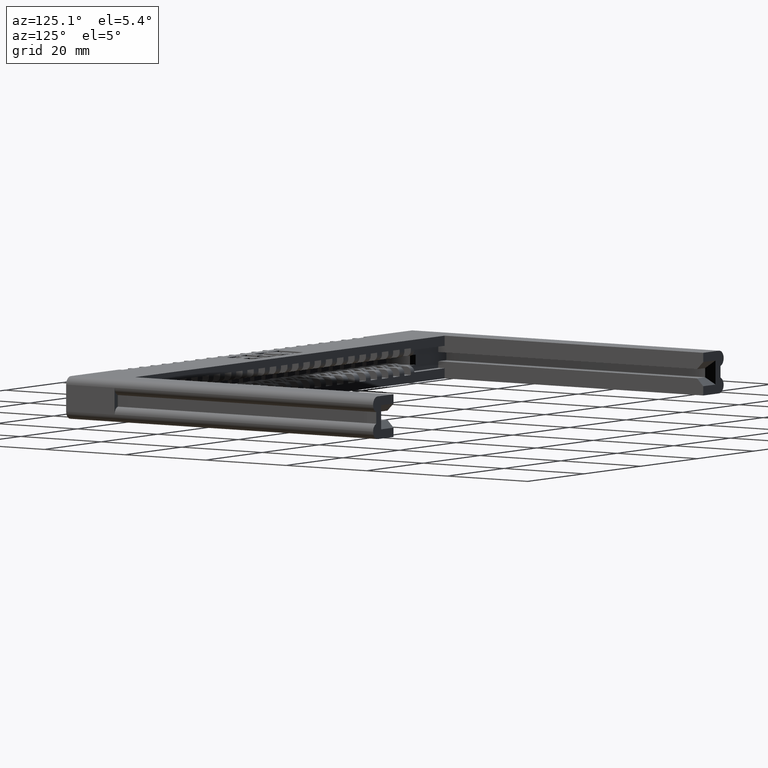
[diagram: clean part render]
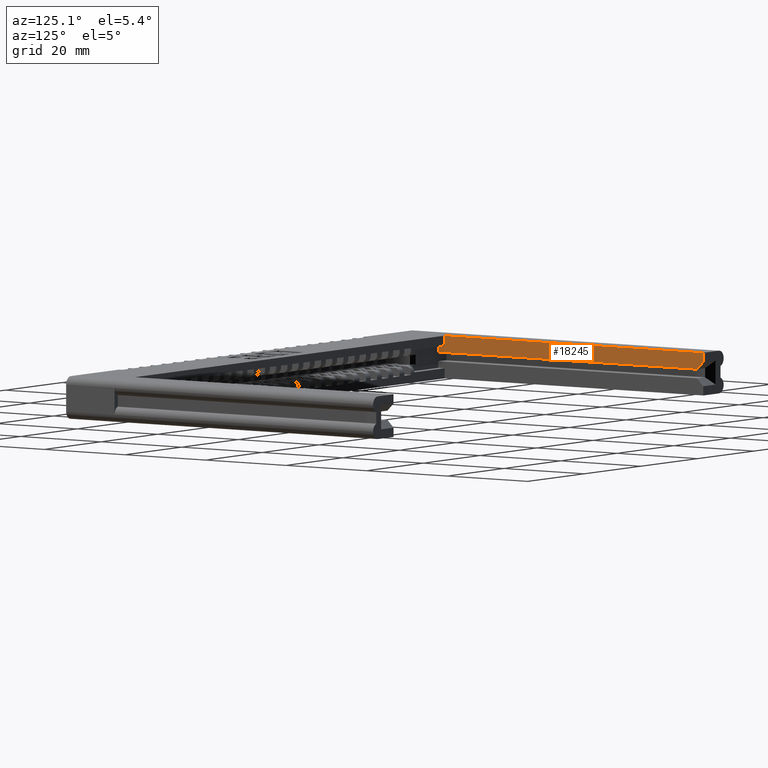
[diagram: same view with one face highlighted and labeled with its STEP entity id]
A machine part, auxiliary view. The second image highlights one B-rep face of the part: STEP entity #18245.
In plain terms, the highlighted planar face has unit normal (-1, 0, 0).
Its self-contained STEP definition (entity closure, byte-faithful):
#578 = VECTOR ( 'NONE', #17015, 39.37007874015748100 ) ;
#1001 = VERTEX_POINT ( 'NONE', #21422 ) ;
#1369 = VECTOR ( 'NONE', #1831, 39.37007874015748100 ) ;
#1831 = DIRECTION ( 'NONE',  ( 0.0000000000000000000, 1.000000000000000000, 0.0000000000000000000 ) ) ;
#1910 = CARTESIAN_POINT ( 'NONE',  ( 0.2844999999999999200, 0.4729999999999994200, 0.1715000000000000100 ) ) ;
#3632 = LINE ( 'NONE', #9833, #12829 ) ;
#5119 = DIRECTION ( 'NONE',  ( -0.0000000000000000000, -0.0000000000000000000, 1.000000000000000000 ) ) ;
#5148 = CARTESIAN_POINT ( 'NONE',  ( 0.2844999999999999200, 0.4109999999999994800, 0.08999999999999994100 ) ) ;
#6005 = EDGE_CURVE ( 'NONE', #8676, #7816, #21758, .T. ) ;
#6157 = CARTESIAN_POINT ( 'NONE',  ( 0.2844999999999999200, 0.4109999999999994800, 0.03699999999999999800 ) ) ;
#6175 = DIRECTION ( 'NONE',  ( -0.0000000000000000000, -0.0000000000000000000, -1.000000000000000000 ) ) ;
#6306 = CARTESIAN_POINT ( 'NONE',  ( 0.2844999999999999200, 0.4729999999999994200, 0.1715000000000000100 ) ) ;
#6788 = EDGE_CURVE ( 'NONE', #1001, #10217, #3632, .T. ) ;
#7352 = VECTOR ( 'NONE', #20477, 39.37007874015748100 ) ;
#7559 = ORIENTED_EDGE ( 'NONE', *, *, #9522, .F. ) ;
#7816 = VERTEX_POINT ( 'NONE', #16880 ) ;
#8062 = CARTESIAN_POINT ( 'NONE',  ( 0.2844999999999999200, 3.000000000000000400, 0.09699999999999935100 ) ) ;
#8676 = VERTEX_POINT ( 'NONE', #13043 ) ;
#9522 = EDGE_CURVE ( 'NONE', #1001, #15237, #10668, .T. ) ;
#9629 = DIRECTION ( 'NONE',  ( 0.0000000000000000000, 0.7071067811865507900, 0.7071067811865443500 ) ) ;
#9830 = EDGE_CURVE ( 'NONE', #15237, #7816, #17295, .T. ) ;
#9833 = CARTESIAN_POINT ( 'NONE',  ( 0.2844999999999999200, 2.940000000000000400, 0.03699999999999999800 ) ) ;
#10210 = PLANE ( 'NONE',  #11589 ) ;
#10217 = VERTEX_POINT ( 'NONE', #8062 ) ;
#10280 = LINE ( 'NONE', #17079, #578 ) ;
#10291 = DIRECTION ( 'NONE',  ( 0.0000000000000000000, -1.000000000000000000, 0.0000000000000000000 ) ) ;
#10655 = EDGE_LOOP ( 'NONE', ( #7559, #11179, #13755, #15482, #16913, #18243, #19823 ) ) ;
#10668 = LINE ( 'NONE', #10747, #19726 ) ;
#10747 = CARTESIAN_POINT ( 'NONE',  ( 0.2844999999999999200, 3.000000000000000400, 0.03699999999999999800 ) ) ;
#10805 = EDGE_CURVE ( 'NONE', #13376, #8676, #18570, .T. ) ;
#11044 = CARTESIAN_POINT ( 'NONE',  ( 0.2844999999999999200, 3.000000000000000400, 0.1715000000000000100 ) ) ;
#11179 = ORIENTED_EDGE ( 'NONE', *, *, #6788, .T. ) ;
#11589 = AXIS2_PLACEMENT_3D ( 'NONE', #20996, #22747, #12104 ) ;
#12030 = EDGE_CURVE ( 'NONE', #13376, #18953, #16035, .T. ) ;
#12104 = DIRECTION ( 'NONE',  ( 0.0000000000000000000, 0.0000000000000000000, 1.000000000000000000 ) ) ;
#12663 = FACE_OUTER_BOUND ( 'NONE', #10655, .T. ) ;
#12829 = VECTOR ( 'NONE', #9629, 39.37007874015748100 ) ;
#13043 = CARTESIAN_POINT ( 'NONE',  ( 0.2844999999999999200, 0.4729999999999995900, 0.08999999999999994100 ) ) ;
#13376 = VERTEX_POINT ( 'NONE', #15471 ) ;
#13755 = ORIENTED_EDGE ( 'NONE', *, *, #22661, .F. ) ;
#14415 = VECTOR ( 'NONE', #6175, 39.37007874015748100 ) ;
#15237 = VERTEX_POINT ( 'NONE', #6157 ) ;
#15471 = CARTESIAN_POINT ( 'NONE',  ( 0.2844999999999999200, 0.4729999999999994200, 0.1715000000000000100 ) ) ;
#15482 = ORIENTED_EDGE ( 'NONE', *, *, #12030, .F. ) ;
#16035 = LINE ( 'NONE', #1910, #1369 ) ;
#16880 = CARTESIAN_POINT ( 'NONE',  ( 0.2844999999999999200, 0.4109999999999994800, 0.08999999999999994100 ) ) ;
#16913 = ORIENTED_EDGE ( 'NONE', *, *, #10805, .T. ) ;
#17015 = DIRECTION ( 'NONE',  ( -0.0000000000000000000, -0.0000000000000000000, -1.000000000000000000 ) ) ;
#17079 = CARTESIAN_POINT ( 'NONE',  ( 0.2844999999999999200, 3.000000000000000400, 0.1715000000000000100 ) ) ;
#17295 = LINE ( 'NONE', #5148, #21321 ) ;
#18243 = ORIENTED_EDGE ( 'NONE', *, *, #6005, .T. ) ;
#18245 = ADVANCED_FACE ( 'NONE', ( #12663 ), #10210, .F. ) ;
#18570 = LINE ( 'NONE', #6306, #14415 ) ;
#18953 = VERTEX_POINT ( 'NONE', #11044 ) ;
#19726 = VECTOR ( 'NONE', #10291, 39.37007874015748100 ) ;
#19823 = ORIENTED_EDGE ( 'NONE', *, *, #9830, .F. ) ;
#20461 = CARTESIAN_POINT ( 'NONE',  ( 0.2844999999999999200, 3.000000000000000400, 0.08999999999999994100 ) ) ;
#20477 = DIRECTION ( 'NONE',  ( 0.0000000000000000000, -1.000000000000000000, 0.0000000000000000000 ) ) ;
#20996 = CARTESIAN_POINT ( 'NONE',  ( 0.2844999999999999200, 0.4729999999999994200, 0.1715000000000000100 ) ) ;
#21321 = VECTOR ( 'NONE', #5119, 39.37007874015748100 ) ;
#21422 = CARTESIAN_POINT ( 'NONE',  ( 0.2844999999999999200, 2.940000000000000400, 0.03699999999999999800 ) ) ;
#21758 = LINE ( 'NONE', #20461, #7352 ) ;
#22661 = EDGE_CURVE ( 'NONE', #18953, #10217, #10280, .T. ) ;
#22747 = DIRECTION ( 'NONE',  ( -1.000000000000000000, 0.0000000000000000000, 0.0000000000000000000 ) ) ;